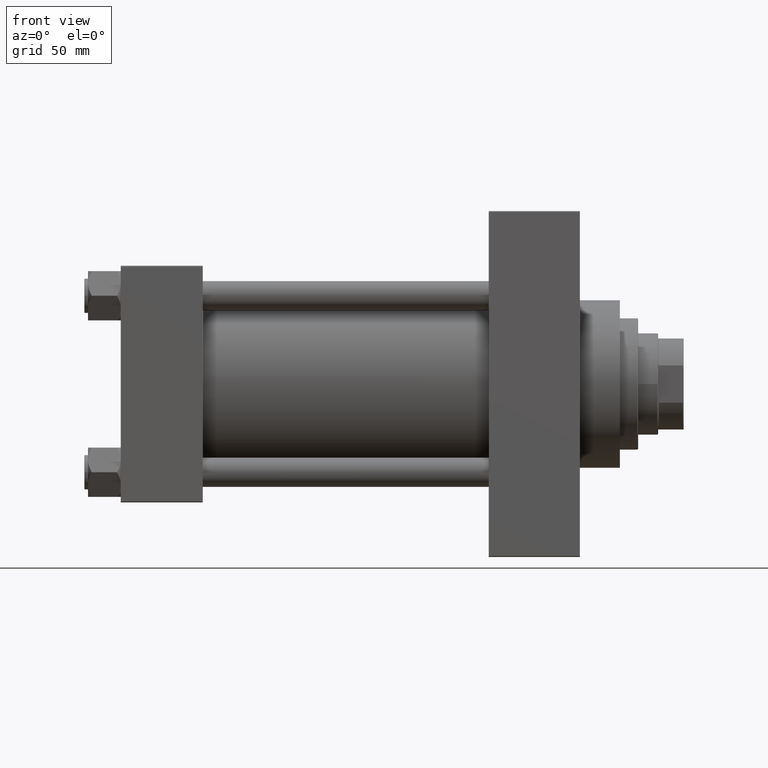
[diagram: clean part render]
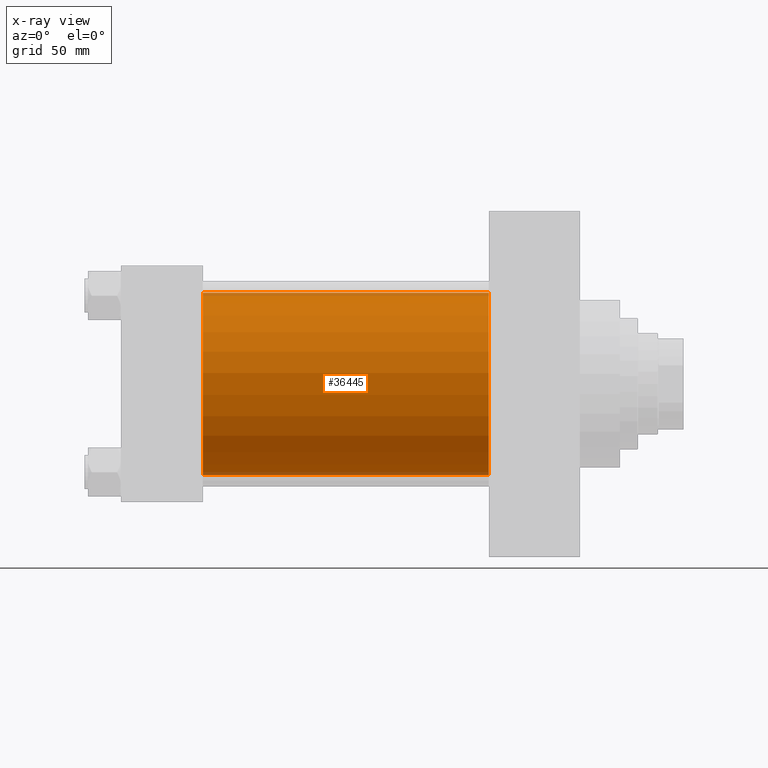
[diagram: x-ray — body ghosted, one internal face saturated and labeled with its STEP entity id]
A machine part, front view, then the same camera in x-ray: the body is ghosted and one INTERNAL B-rep face — a face not visible from any outside direction — is saturated and labeled: STEP entity #36445.
In plain terms, the highlighted cylindrical surface (partial cylindrical patch) has radius 50 mm, axis along (-1, -0, -0).
Its self-contained STEP definition (entity closure, byte-faithful):
#1615 = LINE ( 'NONE', #2322, #14154 ) ;
#1930 = VERTEX_POINT ( 'NONE', #24341 ) ;
#2322 = CARTESIAN_POINT ( 'NONE',  ( 202.0000000000000000, -2.602085213965210642E-15, 50.00000000000000000 ) ) ;
#3756 = EDGE_CURVE ( 'NONE', #32474, #1930, #10957, .T. ) ;
#4681 = DIRECTION ( 'NONE',  ( -1.000000000000000000, -0.000000000000000000, -0.000000000000000000 ) ) ;
#4808 = AXIS2_PLACEMENT_3D ( 'NONE', #23808, #16576, #24044 ) ;
#4932 = EDGE_CURVE ( 'NONE', #32474, #14703, #1615, .T. ) ;
#7702 = ORIENTED_EDGE ( 'NONE', *, *, #3756, .T. ) ;
#8787 = CARTESIAN_POINT ( 'NONE',  ( 202.0000000000000000, 3.521148781771555838E-15, -50.00000000000000000 ) ) ;
#9359 = CARTESIAN_POINT ( 'NONE',  ( 45.00000000000000000, -2.602085213965210642E-15, 50.00000000000000000 ) ) ;
#9730 = AXIS2_PLACEMENT_3D ( 'NONE', #30043, #14357, #10971 ) ;
#9831 = ORIENTED_EDGE ( 'NONE', *, *, #20961, .T. ) ;
#9850 = CARTESIAN_POINT ( 'NONE',  ( 45.00000000000000000, -2.602085213965210642E-15, 0.000000000000000000 ) ) ;
#10957 = CIRCLE ( 'NONE', #4808, 50.00000000000000000 ) ;
#10971 = DIRECTION ( 'NONE',  ( 0.000000000000000000, 0.000000000000000000, 1.000000000000000000 ) ) ;
#14154 = VECTOR ( 'NONE', #46506, 1000.000000000000000 ) ;
#14357 = DIRECTION ( 'NONE',  ( -1.000000000000000000, -0.000000000000000000, -0.000000000000000000 ) ) ;
#14703 = VERTEX_POINT ( 'NONE', #9359 ) ;
#16576 = DIRECTION ( 'NONE',  ( 1.000000000000000000, 0.000000000000000000, 0.000000000000000000 ) ) ;
#16906 = VECTOR ( 'NONE', #4681, 1000.000000000000000 ) ;
#20961 = EDGE_CURVE ( 'NONE', #1930, #32892, #23511, .T. ) ;
#21746 = ORIENTED_EDGE ( 'NONE', *, *, #26440, .F. ) ;
#23280 = AXIS2_PLACEMENT_3D ( 'NONE', #9850, #42457, #46325 ) ;
#23511 = LINE ( 'NONE', #8787, #16906 ) ;
#23808 = CARTESIAN_POINT ( 'NONE',  ( 202.0000000000000000, -2.602085213965210642E-15, 0.000000000000000000 ) ) ;
#24044 = DIRECTION ( 'NONE',  ( 0.000000000000000000, 0.000000000000000000, -1.000000000000000000 ) ) ;
#24321 = ORIENTED_EDGE ( 'NONE', *, *, #4932, .F. ) ;
#24341 = CARTESIAN_POINT ( 'NONE',  ( 202.0000000000000000, 3.521148781771555838E-15, -50.00000000000000000 ) ) ;
#25195 = EDGE_LOOP ( 'NONE', ( #7702, #9831, #21746, #24321 ) ) ;
#25350 = CARTESIAN_POINT ( 'NONE',  ( 45.00000000000000000, 3.521148781771555838E-15, -50.00000000000000000 ) ) ;
#26440 = EDGE_CURVE ( 'NONE', #14703, #32892, #31735, .T. ) ;
#29557 = CYLINDRICAL_SURFACE ( 'NONE', #9730, 50.00000000000000000 ) ;
#30043 = CARTESIAN_POINT ( 'NONE',  ( 202.0000000000000000, -2.602085213965210642E-15, 0.000000000000000000 ) ) ;
#31735 = CIRCLE ( 'NONE', #23280, 50.00000000000000000 ) ;
#32474 = VERTEX_POINT ( 'NONE', #42948 ) ;
#32892 = VERTEX_POINT ( 'NONE', #25350 ) ;
#36445 = ADVANCED_FACE ( 'NONE', ( #44048 ), #29557, .F. ) ;
#42457 = DIRECTION ( 'NONE',  ( 1.000000000000000000, 0.000000000000000000, 0.000000000000000000 ) ) ;
#42948 = CARTESIAN_POINT ( 'NONE',  ( 202.0000000000000000, -2.602085213965210642E-15, 50.00000000000000000 ) ) ;
#44048 = FACE_OUTER_BOUND ( 'NONE', #25195, .T. ) ;
#46325 = DIRECTION ( 'NONE',  ( 0.000000000000000000, 0.000000000000000000, -1.000000000000000000 ) ) ;
#46506 = DIRECTION ( 'NONE',  ( -1.000000000000000000, -0.000000000000000000, -0.000000000000000000 ) ) ;